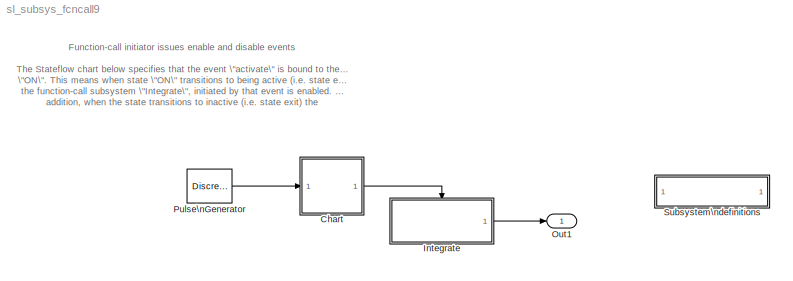
MODEL sl_subsys_fcncall9
KIND model
BLOCK [SubSystem]  Subsystem\ndefinitions
  MaskDisplay = disp('Subsystem\\ndefinitions')\n\n
  MaskIconFrame = on
  MaskIconOpaque = on
  MaskIconRotate = none
  MaskIconUnits = autoscale
  MinAlgLoopOccurrences = off
  OpenFcn = helpview([matlabroot,'/toolbox/simulink/simdemos/sl_subsys_definitions.html']);
  Ports = []
  PropExecContextAcrossSSBoundary = on
  RTWSystemCode = Auto
  TreatAsAtomicUnit = off
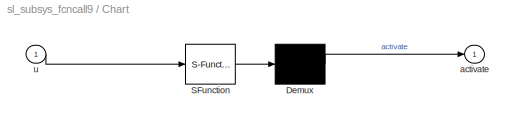
BLOCK [SubSystem] Chart
  MaskDescription = Stateflow diagram
  MaskDisplay = plot(sf('Private','sfblk','xIcon'),sf('Private','sfblk','yIcon'));text(0.5,0,sf('Private', 'sfblk', 'tIcon'),'HorizontalAl','Center','VerticalAl','Bottom');
  MaskIconFrame = off
  MaskIconOpaque = off
  MaskIconRotate = none
  MaskIconUnits = autoscale
  MaskSelfModifiable = on
  MaskType = Stateflow
  MinAlgLoopOccurrences = off
  Ports = [1, 1]
  PropExecContextAcrossSSBoundary = on
  RTWSystemCode = Auto
  TreatAsAtomicUnit = off
BLOCK [Demux] Chart/ Demux 
  Outputs = 1
  Ports = [1, 1]
BLOCK [S-Function] Chart/ SFunction 
  FunctionName = sf_sfun
  PortCounts = [1 1]
  Ports = [1, 1]
  Tag = Stateflow S-Function sl_subsys_fcncall9 1
BLOCK [Outport] Chart/activate
  BusOutputAsStruct = off
  IconDisplay = Port number
BLOCK [Inport] Chart/u
  IconDisplay = Port number
  LatchInput = off
  Port = 1
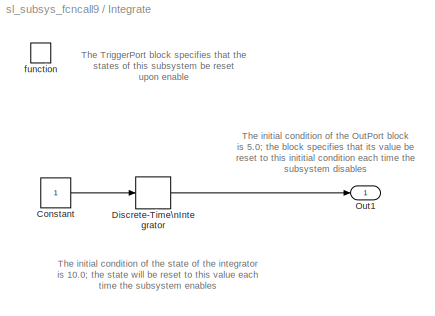
BLOCK [SubSystem] Integrate
  MinAlgLoopOccurrences = off
  Ports = [0, 1, 0, 1]
  PropExecContextAcrossSSBoundary = on
  RTWSystemCode = Auto
  TreatAsAtomicUnit = on
BLOCK [Constant] Integrate/Constant
BLOCK [DiscreteIntegrator] Integrate/Discrete-Time\nIntegrator
  ExternalReset = none
  ICPrevOutput = DiscIntNeverNeededParam
  ICPrevScaledInput = DiscIntNeverNeededParam
  InitialCondition = 10
  InitialConditionSource = internal
  IntegratorMethod = Integration: Backward Euler
  Ports = [1, 1]
  SampleTime = -1
BLOCK [Outport] Integrate/Out1
  BusOutputAsStruct = off
  IconDisplay = Port number
  InitialOutput = 5
  OutputWhenDisabled = reset
BLOCK [TriggerPort] Integrate/function
  Ports = []
  SampleTime = -1
  StatesWhenEnabling = reset
  TriggerType = function-call
BLOCK [Outport] Out1
  BusOutputAsStruct = off
  IconDisplay = Port number
BLOCK [DiscretePulseGenerator] Pulse\nGenerator
  Period = 20
  PhaseDelay = 10
  Ports = [0, 1]
  PulseWidth = 10
  SampleTime = 0.1
ANNOTATION (root): Function-call initiator issues enable and disable events\n\nThe Stateflow chart below specifies that the event \"activate\" is bound to the state\n\"ON\". This means when state \"ON\" transitions to being active (i.e. state entry), \nthe function-call subsystem \"Integrate\", initiated by that event is enabled. In \naddition, when the state transitions to inactive (i.e. state exit) the \nfunction-...<+306ch>
ANNOTATION Integrate: The TriggerPort block specifies that the\nstates of this subsystem be reset\nupon enable
ANNOTATION Integrate: The initial condition of the OutPort block\nis 5.0; the block specifies that its value be\nreset to this inititial condition each time the\nsubsystem disables
ANNOTATION Integrate: The initial condition of the state of the integrator\nis 10.0; the state will be reset to this value each\ntime the subsystem enables
LINE Chart/ Demux :1 -> Chart/activate:1
LINE Chart/ SFunction :1 -> Chart/ Demux :1
LINE Chart/u:1 -> Chart/ SFunction :1
LINE Chart:1 -> Integrate:trigger
LINE Integrate/Constant:1 -> Integrate/Discrete-Time\nIntegrator:1
LINE Integrate/Discrete-Time\nIntegrator:1 -> Integrate/Out1:1
LINE Integrate:1 -> Out1:1
LINE Pulse\nGenerator:1 -> Chart:1
CHART Chart states=2 transitions=6
  STATE_LABEL 'OFF'
  STATE_LABEL 'ON/\\nbind: activate'
